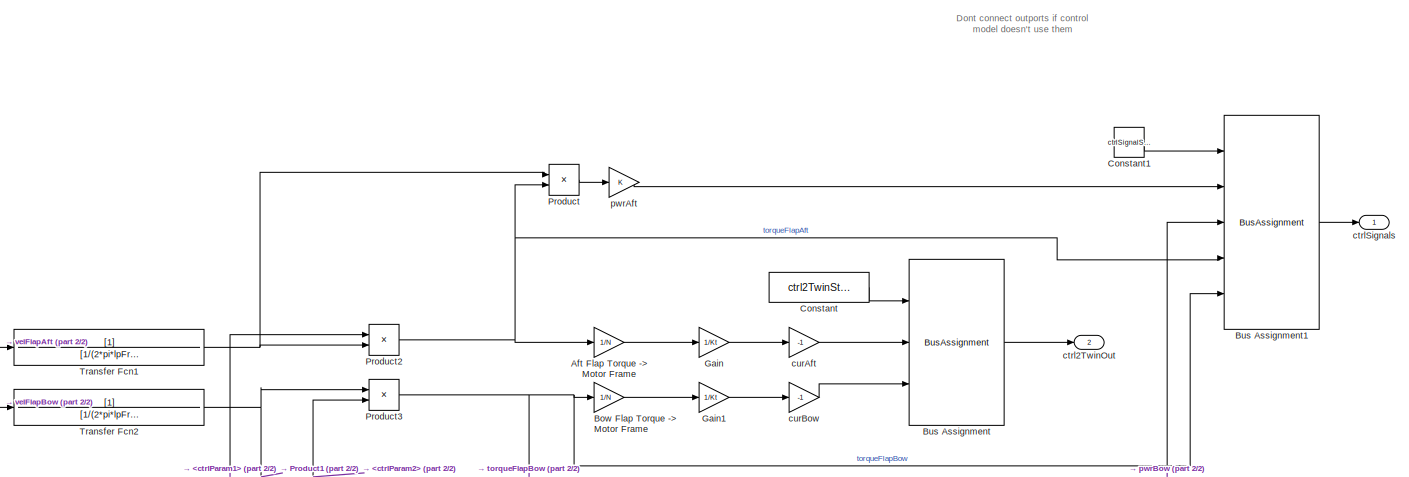
[diagram: root canvas - part 1/2, top right region]
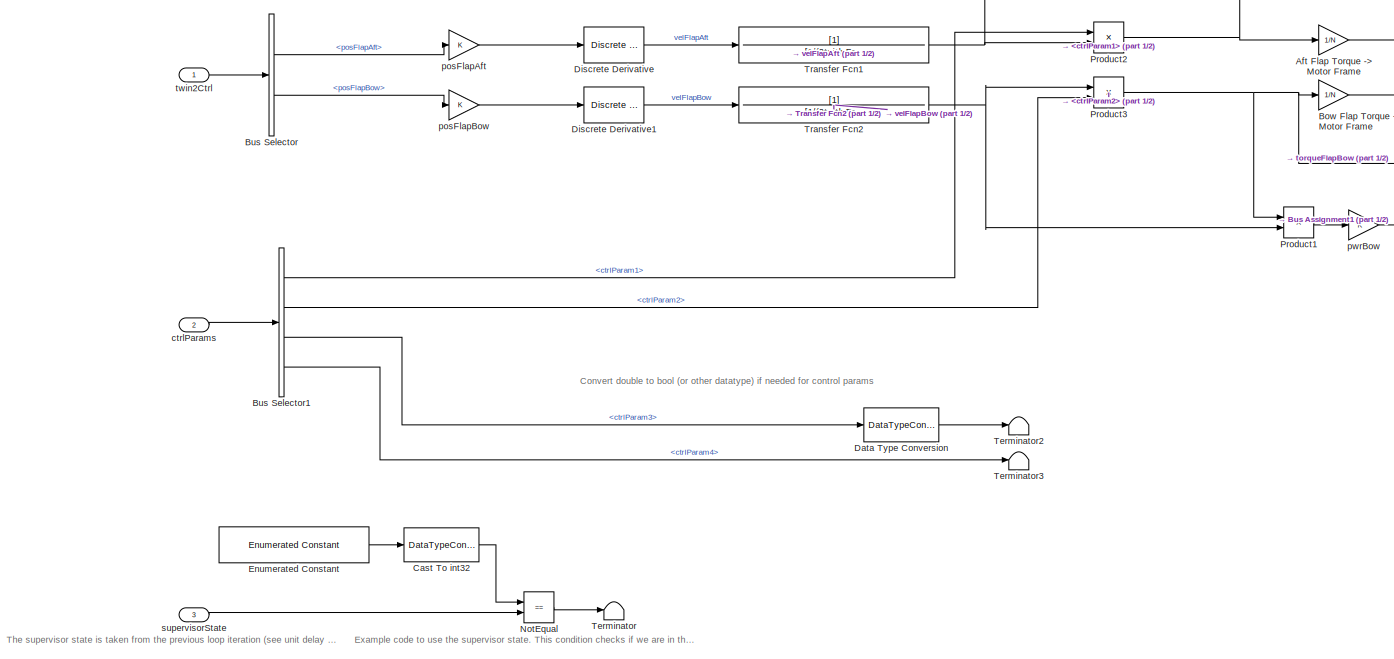
[diagram: root canvas - part 2/2, middle left region]
MODEL slx_c1b859843e1b
KIND model
CONFIG AbsTol = auto
CONFIG EnableMultiTasking = off
CONFIG FixedStep = Ts
CONFIG MaxStep = auto
CONFIG MinStep = auto
CONFIG RelTol = 1e-3
CONFIG SampleTimeConstraint = Unconstrained
CONFIG SolverName = FixedStepAuto
CONFIG StartTime = 0.0
CONFIG StopTime = 300
BLOCK [Gain] Aft Flap Torque -> Motor Frame
  Gain = 1/N
BLOCK [Gain] Bow Flap Torque -> Motor Frame
  Gain = 1/N
BLOCK [BusAssignment] Bus Assignment
  AssignedSignals = curAft,curBow
  Ports = [3, 1]
BLOCK [BusAssignment] Bus Assignment1
  AssignedSignals = ctrlSignal1,ctrlSignal2,ctrlSignal3,ctrlSignal4
  Ports = [5, 1]
BLOCK [BusSelector] Bus Selector
  OutputSignals = posFlapAft,posFlapBow
  Ports = [1, 2]
BLOCK [BusSelector] Bus Selector1
  OutputSignals = ctrlParam1,ctrlParam2,ctrlParam3,ctrlParam4
  Ports = [1, 4]
BLOCK [DataTypeConversion] Cast To int32
  OutDataTypeStr = int32
  RndMeth = Floor
  SaturateOnIntegerOverflow = off
BLOCK [Constant] Constant
  OutDataTypeStr = Bus: ctrl2TwinBus
  Value = ctrl2TwinStruct
BLOCK [Constant] Constant1
  OutDataTypeStr = Bus: ctrlSignalBus
  Value = ctrlSignalStruct
BLOCK [DataTypeConversion] Data Type Conversion
  OutDataTypeStr = boolean
  RndMeth = Floor
  SaturateOnIntegerOverflow = off
BLOCK [Reference] Discrete Derivative  REF=simulink/Discrete/Discrete Derivative
  Ports = [1, 1]
  SourceBlock = simulink/Discrete/Discrete Derivative
  SourceProductBaseCode = SL
  SourceType = Discrete Derivative
BLOCK [Reference] Discrete Derivative1  REF=simulink/Discrete/Discrete Derivative
  Ports = [1, 1]
  SourceBlock = simulink/Discrete/Discrete Derivative
  SourceProductBaseCode = SL
  SourceType = Discrete Derivative
BLOCK [Reference] Enumerated Constant  REF=simulink/Sources/Enumerated
Constant
  Ports = [0, 1]
  SourceBlock = simulink/Sources/Enumerated\nConstant
  SourceProductBaseCode = SL
  SourceType = Enumerated Constant
BLOCK [Gain] Gain
  Gain = 1/Kt
BLOCK [Gain] Gain1
  Gain = 1/Kt
BLOCK [RelationalOperator] NotEqual
  InputSameDT = off
  Operator = ==
  OutDataTypeStr = boolean
  Ports = [2, 1]
  RndMeth = Simplest
BLOCK [Product] Product
  Ports = [2, 1]
BLOCK [Product] Product1
  Ports = [2, 1]
BLOCK [Product] Product2
  Ports = [2, 1]
BLOCK [Product] Product3
  Ports = [2, 1]
BLOCK [Terminator] Terminator
BLOCK [Terminator] Terminator2
BLOCK [Terminator] Terminator3
BLOCK [TransferFcn] Transfer Fcn1
  Denominator = [1/(2*pi*lpFreqVelocity) 1]
BLOCK [TransferFcn] Transfer Fcn2
  Denominator = [1/(2*pi*lpFreqVelocity) 1]
BLOCK [Outport] ctrl2TwinOut
  OutDataTypeStr = Bus: ctrl2TwinBus
  Port = 2
BLOCK [Inport] ctrlParams
  OutDataTypeStr = Bus: ctrlParamBus
  Port = 2
BLOCK [Outport] ctrlSignals
  OutDataTypeStr = Bus: ctrlSignalBus
BLOCK [Gain] curAft
  Gain = -1
BLOCK [Gain] curBow
  Gain = -1
BLOCK [Gain] posFlapAft
BLOCK [Gain] posFlapBow
BLOCK [Gain] pwrAft
BLOCK [Gain] pwrBow
BLOCK [Inport] supervisorState
  OutDataTypeStr = int32
  Port = 3
BLOCK [Inport] twin2Ctrl
  OutDataTypeStr = Bus: twin2CtrlBus
ANNOTATION (root): Example code to use the supervisor state. This condition checks if we are in the normal state. This could be used to reset internal controller stage, e.g. an integrator
ANNOTATION (root): The supervisor state is taken from the previous loop iteration (see unit delay block in top level model). The unit delay is required to avoid an algebraic loop condition.
ANNOTATION (root): Convert double to bool (or other datatype) if needed for control params
ANNOTATION (root): Dont connect outports if control model doesn't use them
LINE Aft Flap Torque -> Motor Frame:1 -> Gain:1
LINE Bow Flap Torque -> Motor Frame:1 -> Gain1:1
LINE Bus Assignment1:1 -> ctrlSignals:1
LINE Bus Assignment:1 -> ctrl2TwinOut:1
LINE Bus Selector1:1 -> Product2:1
LINE Bus Selector1:2 -> Product3:2
LINE Bus Selector1:3 -> Data Type Conversion:1
LINE Bus Selector1:4 -> Terminator3:1
LINE Bus Selector:1 -> posFlapAft:1
LINE Bus Selector:2 -> posFlapBow:1
LINE Cast To int32:1 -> NotEqual:1
LINE Constant1:1 -> Bus Assignment1:1
LINE Constant:1 -> Bus Assignment:1
LINE Data Type Conversion:1 -> Terminator2:1
LINE Discrete Derivative1:1 -> Transfer Fcn2:1
LINE Discrete Derivative:1 -> Transfer Fcn1:1
LINE Enumerated Constant:1 -> Cast To int32:1
LINE Gain1:1 -> curBow:1
LINE Gain:1 -> curAft:1
LINE NotEqual:1 -> Terminator:1
LINE Product1:1 -> pwrBow:1
NET Product2:1 -> Aft Flap Torque -> Motor Frame:1, Bus Assignment1:4, Product:2
NET Product3:1 -> Bow Flap Torque -> Motor Frame:1, Bus Assignment1:5, Product1:1
LINE Product:1 -> pwrAft:1
NET Transfer Fcn1:1 -> Product2:2, Product:1
NET Transfer Fcn2:1 -> Product1:2, Product3:1
LINE ctrlParams:1 -> Bus Selector1:1
LINE curAft:1 -> Bus Assignment:2
LINE curBow:1 -> Bus Assignment:3
LINE posFlapAft:1 -> Discrete Derivative:1
LINE posFlapBow:1 -> Discrete Derivative1:1
LINE pwrAft:1 -> Bus Assignment1:2
LINE pwrBow:1 -> Bus Assignment1:3
LINE supervisorState:1 -> NotEqual:2
LINE twin2Ctrl:1 -> Bus Selector:1
note: NET lines group one-source signal fan-out (src -> all destinations, sorted); 1:1 wires keep LINE
